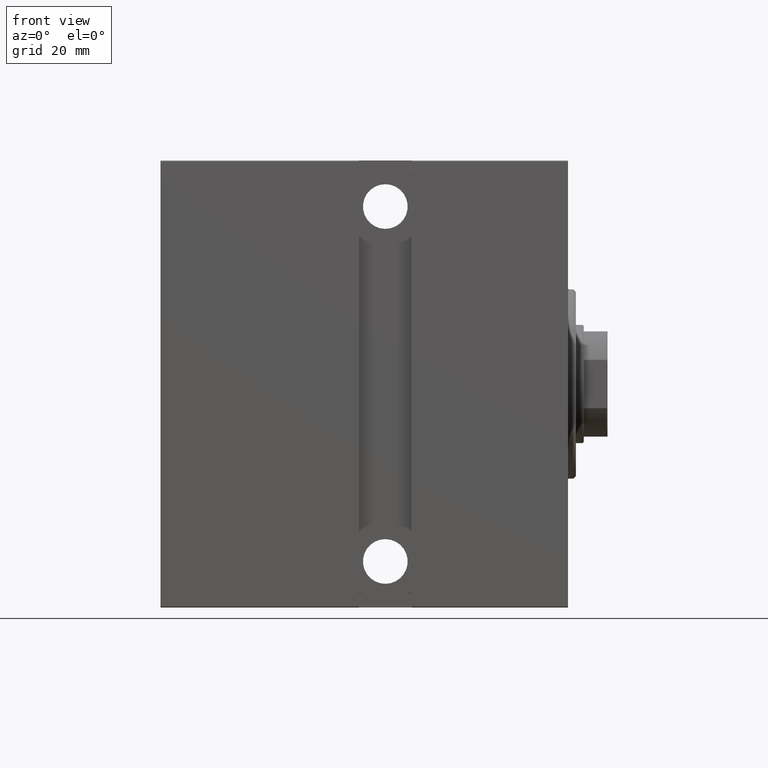
[diagram: clean part render]
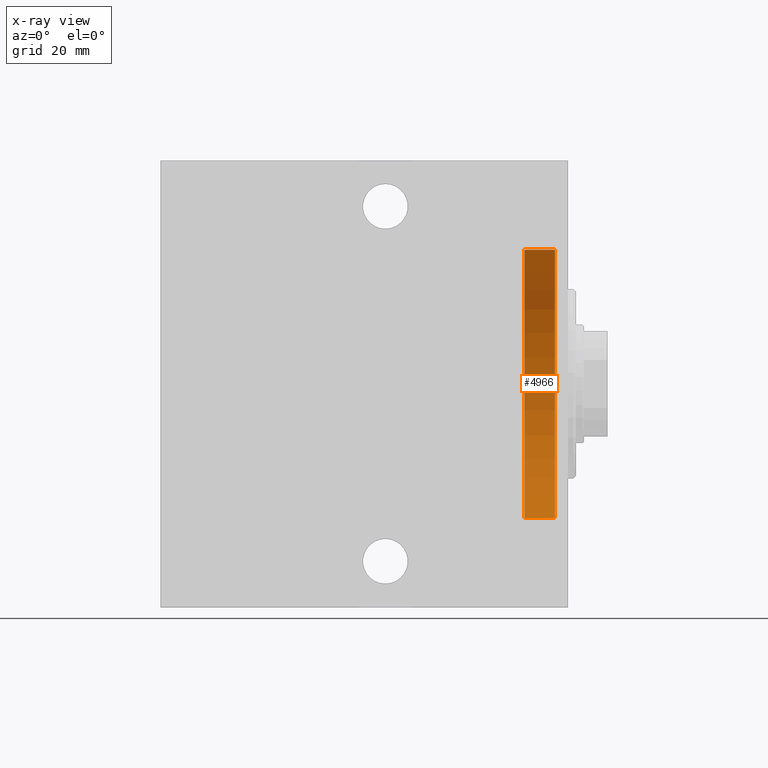
[diagram: x-ray — body ghosted, one internal face saturated and labeled with its STEP entity id]
A machine part, front view, then the same camera in x-ray: the body is ghosted and one INTERNAL B-rep face — a face not visible from any outside direction — is saturated and labeled: STEP entity #4966.
In plain terms, the highlighted cylindrical surface (partial cylindrical patch) has radius 51 mm, axis along (1, 0, 0).
Its self-contained STEP definition (entity closure, byte-faithful):
#1489 = VECTOR ( 'NONE', #39954, 1000.000000000000000 ) ;
#1682 = FACE_OUTER_BOUND ( 'NONE', #15478, .T. ) ;
#2395 = EDGE_CURVE ( 'NONE', #15472, #22069, #23682, .T. ) ;
#2422 = ORIENTED_EDGE ( 'NONE', *, *, #23252, .F. ) ;
#3183 = VERTEX_POINT ( 'NONE', #30710 ) ;
#3713 = AXIS2_PLACEMENT_3D ( 'NONE', #40859, #40439, #31125 ) ;
#4566 = CARTESIAN_POINT ( 'NONE',  ( -5.000000000000000888, 6.245698675651499656E-15, 51.00000000000000000 ) ) ;
#4692 = DIRECTION ( 'NONE',  ( 1.000000000000000000, -0.000000000000000000, -0.000000000000000000 ) ) ;
#4966 = ADVANCED_FACE ( 'NONE', ( #1682 ), #21375, .T. ) ;
#6013 = EDGE_CURVE ( 'NONE', #32559, #15472, #27640, .T. ) ;
#6422 = ORIENTED_EDGE ( 'NONE', *, *, #2395, .T. ) ;
#8808 = CARTESIAN_POINT ( 'NONE',  ( -16.60000000000000142, 0.000000000000000000, 0.000000000000000000 ) ) ;
#9879 = CARTESIAN_POINT ( 'NONE',  ( -16.60000000000000142, 0.000000000000000000, -51.00000000000000000 ) ) ;
#11324 = DIRECTION ( 'NONE',  ( 0.000000000000000000, 0.000000000000000000, -1.000000000000000000 ) ) ;
#15411 = DIRECTION ( 'NONE',  ( -1.000000000000000000, -0.000000000000000000, -0.000000000000000000 ) ) ;
#15472 = VERTEX_POINT ( 'NONE', #4566 ) ;
#15478 = EDGE_LOOP ( 'NONE', ( #34272, #16564, #6422, #2422 ) ) ;
#16564 = ORIENTED_EDGE ( 'NONE', *, *, #6013, .T. ) ;
#18235 = CARTESIAN_POINT ( 'NONE',  ( -5.000000000000000888, 0.000000000000000000, 0.000000000000000000 ) ) ;
#20413 = VECTOR ( 'NONE', #4692, 1000.000000000000000 ) ;
#20922 = AXIS2_PLACEMENT_3D ( 'NONE', #18235, #15411, #11324 ) ;
#21375 = CYLINDRICAL_SURFACE ( 'NONE', #3713, 51.00000000000000000 ) ;
#22005 = DIRECTION ( 'NONE',  ( -1.000000000000000000, 0.000000000000000000, 0.000000000000000000 ) ) ;
#22069 = VERTEX_POINT ( 'NONE', #35907 ) ;
#22283 = EDGE_CURVE ( 'NONE', #32559, #3183, #32579, .T. ) ;
#23252 = EDGE_CURVE ( 'NONE', #3183, #22069, #26750, .T. ) ;
#23682 = CIRCLE ( 'NONE', #20922, 51.00000000000000000 ) ;
#25475 = DIRECTION ( 'NONE',  ( 0.000000000000000000, 0.000000000000000000, 1.000000000000000000 ) ) ;
#26750 = LINE ( 'NONE', #9879, #1489 ) ;
#27640 = LINE ( 'NONE', #40838, #20413 ) ;
#30710 = CARTESIAN_POINT ( 'NONE',  ( -16.60000000000000142, 0.000000000000000000, -51.00000000000000000 ) ) ;
#30898 = CARTESIAN_POINT ( 'NONE',  ( -16.60000000000000142, 6.245698675651499656E-15, 51.00000000000000000 ) ) ;
#31125 = DIRECTION ( 'NONE',  ( 0.000000000000000000, 0.000000000000000000, -1.000000000000000000 ) ) ;
#32559 = VERTEX_POINT ( 'NONE', #30898 ) ;
#32579 = CIRCLE ( 'NONE', #38114, 51.00000000000000000 ) ;
#34272 = ORIENTED_EDGE ( 'NONE', *, *, #22283, .F. ) ;
#35907 = CARTESIAN_POINT ( 'NONE',  ( -5.000000000000000888, 0.000000000000000000, -51.00000000000000000 ) ) ;
#38114 = AXIS2_PLACEMENT_3D ( 'NONE', #8808, #22005, #25475 ) ;
#39954 = DIRECTION ( 'NONE',  ( 1.000000000000000000, -0.000000000000000000, -0.000000000000000000 ) ) ;
#40439 = DIRECTION ( 'NONE',  ( 1.000000000000000000, -0.000000000000000000, -0.000000000000000000 ) ) ;
#40838 = CARTESIAN_POINT ( 'NONE',  ( -16.60000000000000142, 6.245698675651499656E-15, 51.00000000000000000 ) ) ;
#40859 = CARTESIAN_POINT ( 'NONE',  ( -16.60000000000000142, 0.000000000000000000, 0.000000000000000000 ) ) ;